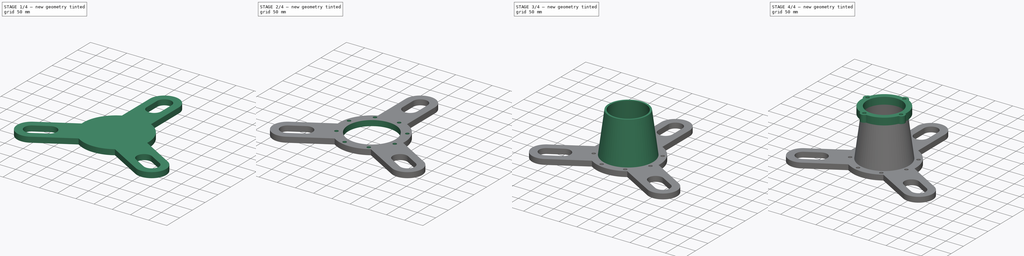
[diagram: build sequence overview — one tinted view per stage of 4, left to right]
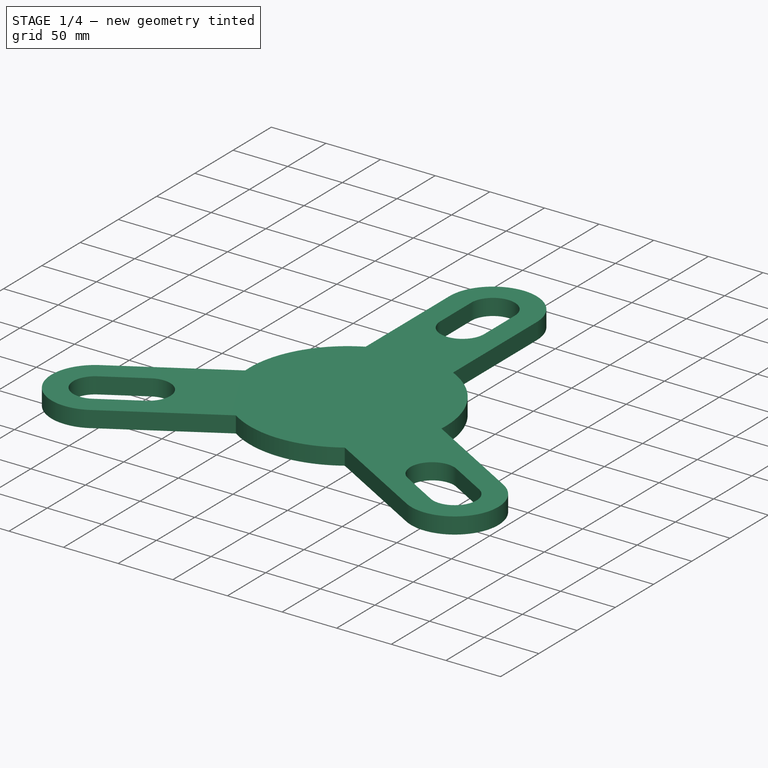
[diagram: stage 1 of 4 — iso view after this stage's code; geometry added in this stage tinted green]
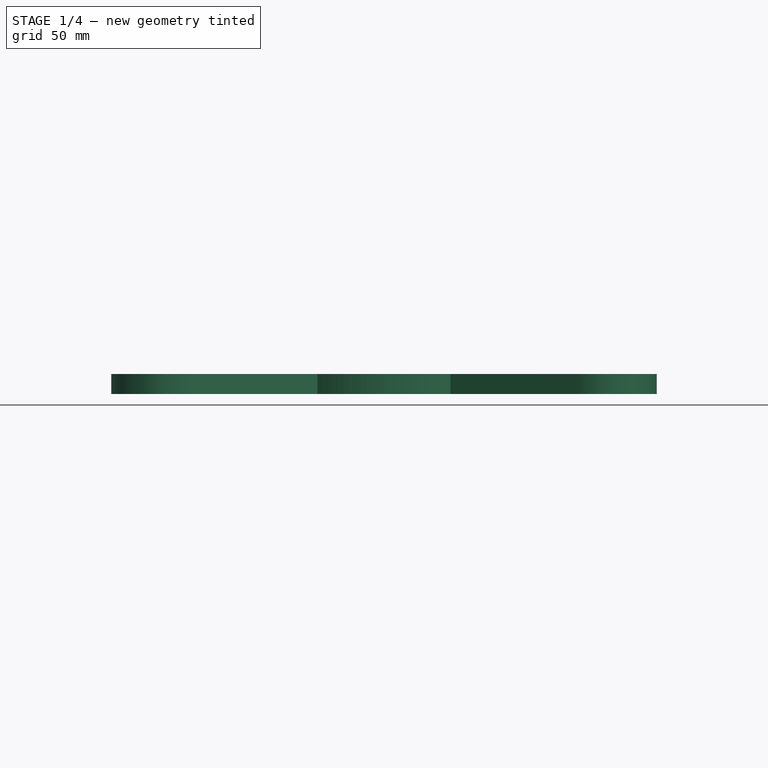
[diagram: stage 1 of 4 — front view after this stage's code; geometry added in this stage tinted green]
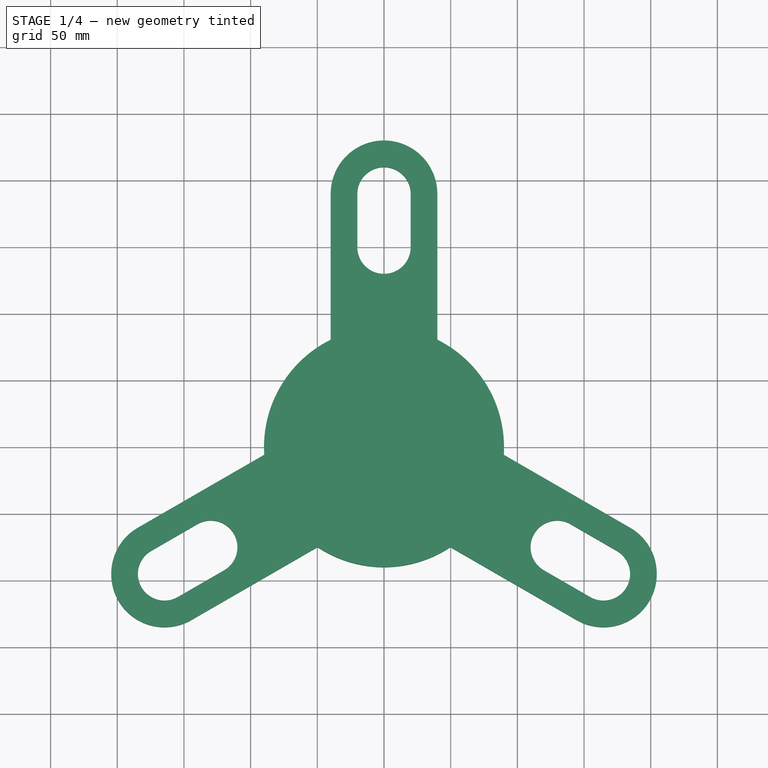
[diagram: stage 1 of 4 — top view after this stage's code; geometry added in this stage tinted green]
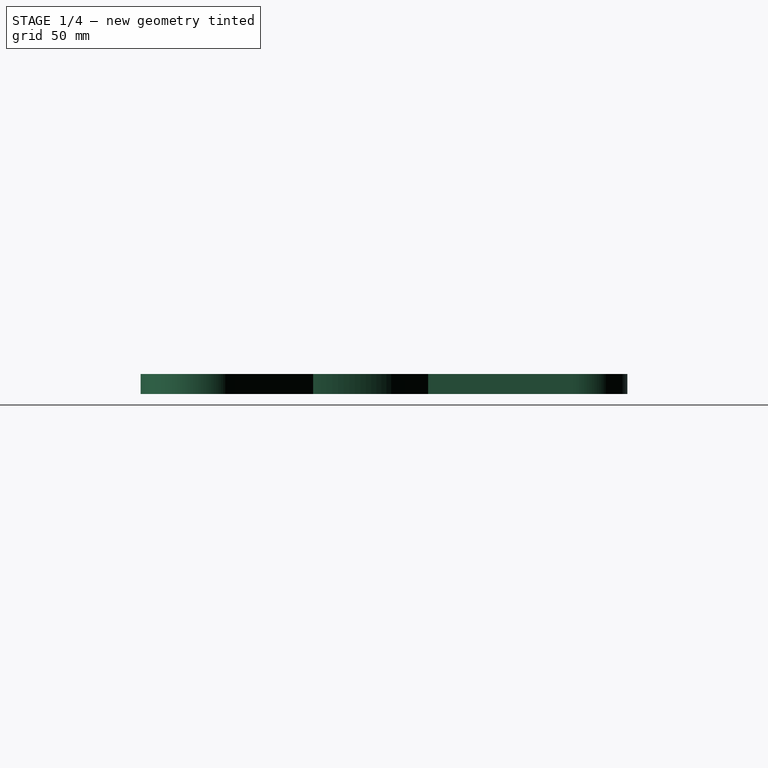
[diagram: stage 1 of 4 — right view after this stage's code; geometry added in this stage tinted green]
FCSTD DOCUMENT  (FreeCAD 0.16RUnknown)
Label: 35
License: All rights reserved
LicenseURL: http://en.wikipedia.org/wiki/All_rights_reserved
objects: Sketcher::SketchObject×12, PartDesign::Pad×4, PartDesign::Pocket×3, PartDesign::PolarPattern×2, Part::Loft×2, Part::Cut×1, Part::MultiFuse×1, Part::Feature×1
note: 33 computed .brp shape members not serialized (recipe doc carries the construction recipe); baked Part::Feature solids carry a one-line shape summary decoded from their .brp

FEATURE [Sketcher::SketchObject] Sketch
  sketch-geometry (1):
    g0: Circle CenterX=0 CenterY=0 CenterZ=0 NormalX=0 NormalY=0 NormalZ=1 Radius=90
  constraints (2):
    c: Coincident(g0,g-1)
    c: Radius(g0) = 90
FEATURE [PartDesign::Pad] Pad
  Length = 15
  Length2 = 100
  Sketch = -> Sketch
  Type = 0
FEATURE [Sketcher::SketchObject] Sketch001
  Placement = pos=(0,0,15) rot=(0,0,1;0rad)
  Support = -> Pad [Face3]
  sketch-geometry (9):
    g0: Circle [constr] CenterX=0 CenterY=0 CenterZ=0 NormalX=0 NormalY=0 NormalZ=1 Radius=150
    g1: ArcOfCircle CenterX=0 CenterY=190 CenterZ=0 NormalX=0 NormalY=0 NormalZ=1 Radius=20 StartAngle=0 EndAngle=3.14159
    g2: ArcOfCircle CenterX=0 CenterY=150 CenterZ=0 NormalX=0 NormalY=0 NormalZ=1 Radius=20 StartAngle=3.14159 EndAngle=6.28319
    g3: LineSegment StartX=-20 StartY=190 StartZ=0 EndX=-20 EndY=150 EndZ=0
    g4: LineSegment StartX=20 StartY=190 StartZ=0 EndX=20 EndY=150 EndZ=0
    g5: ArcOfCircle CenterX=0 CenterY=190 CenterZ=0 NormalX=0 NormalY=0 NormalZ=1 Radius=40 StartAngle=6.27593 EndAngle=9.4509
    g6: LineSegment StartX=-39.9864 StartY=188.955 StartZ=0 EndX=-39.9864 EndY=64.8353 EndZ=0
    g7: LineSegment StartX=-39.9864 StartY=64.8353 StartZ=0 EndX=39.9989 EndY=64.8353 EndZ=0
    g8: LineSegment StartX=39.9989 StartY=64.8353 StartZ=0 EndX=39.9989 EndY=189.71 EndZ=0
  constraints (21):
    c: Coincident(g0,g-1)
    c: Radius(g0) = 150
    c: Tangent(g1,g4) = 1.5708
    c: Tangent(g1,g3) = -1.5708
    c: Tangent(g3,g2) = -1.5708
    c: Tangent(g4,g2) = 1.5708
    c: Vertical(g3)
    c: Equal(g1,g2)
    c: PointOnObject(g2,g-2)
    c: PointOnObject(g2,g0)
    c: Radius(g1) = 20
    c: DistanceY(g2,g1) = 40
    c: Coincident(g5,g1)
    c: Radius(g5) = 40
    c: Coincident(g5,g6)
    c: Vertical(g6)
    c: Coincident(g6,g7)
    c: Horizontal(g7)
    c: Coincident(g7,g8)
    c: Coincident(g8,g5)
    c: Vertical(g8)
FEATURE [PartDesign::Pad] Pad001
  Length = 15
  Length2 = 100
  Reversed = true
  Sketch = -> Sketch001
  Type = 0
FEATURE [PartDesign::PolarPattern] PolarPattern
  Angle = 360
  Axis = -> Sketch001 [N_Axis]
  Occurrences = 3
  Originals = -> [Pad001]
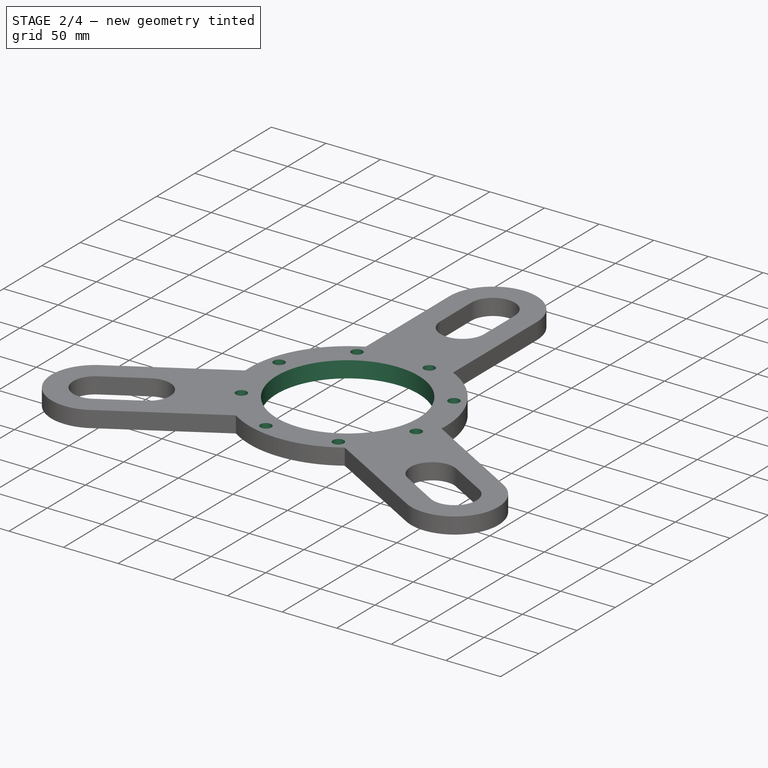
[diagram: stage 2 of 4 — iso view after this stage's code; geometry added in this stage tinted green]
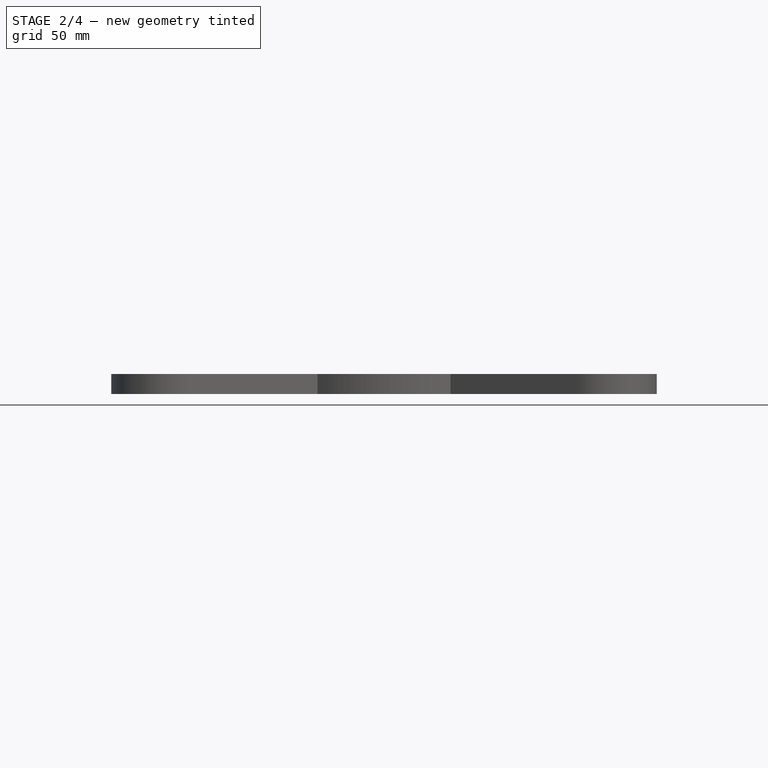
[diagram: stage 2 of 4 — front view after this stage's code; geometry added in this stage tinted green]
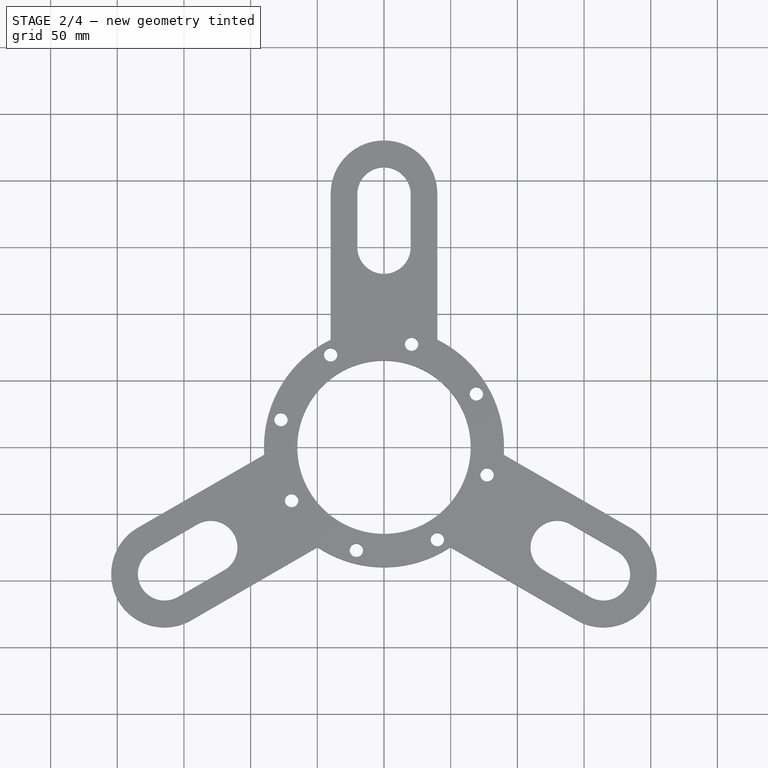
[diagram: stage 2 of 4 — top view after this stage's code; geometry added in this stage tinted green]
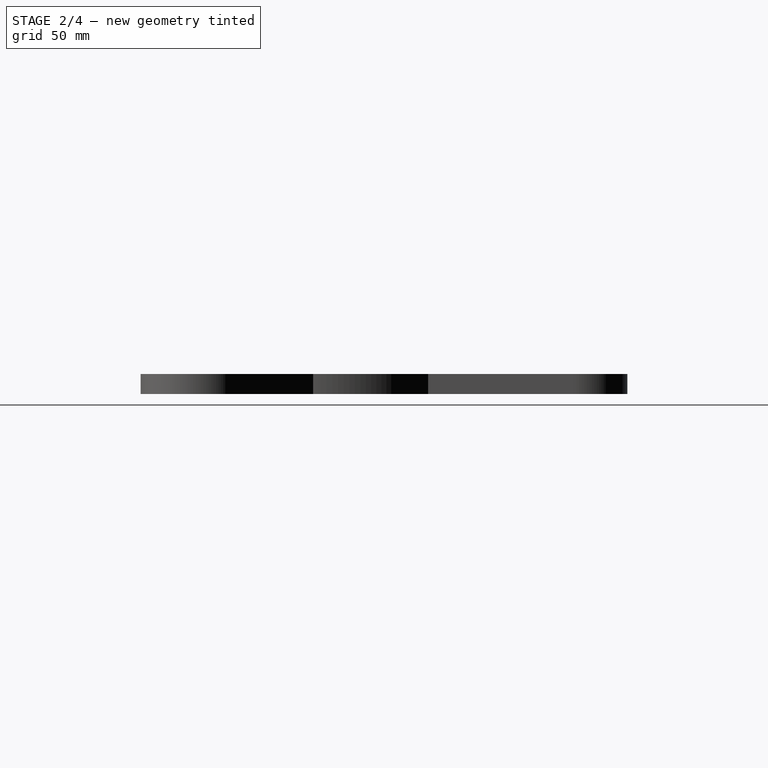
[diagram: stage 2 of 4 — right view after this stage's code; geometry added in this stage tinted green]
FEATURE [Sketcher::SketchObject] Sketch002
  ExternalGeometry = -> [PolarPattern]
  Placement = pos=(0,0,15) rot=(0,0,1;0rad)
  Support = -> PolarPattern [Face15]
  sketch-geometry (3):
    g0: Circle [constr] CenterX=0 CenterY=0 CenterZ=0 NormalX=0 NormalY=0 NormalZ=1 Radius=80
    g1: LineSegment [constr] StartX=0 StartY=0 StartZ=0 EndX=-163.869 EndY=-94.6098 EndZ=0
    g2: Circle CenterX=-69.282 CenterY=-40 CenterZ=0 NormalX=0 NormalY=0 NormalZ=1 Radius=5
  constraints (7):
    c: Coincident(g0,g-1)
    c: Radius(g0) = 80
    c: Coincident(g1,g-1)
    c: PointOnObject(g-3,g1)
    c: PointOnObject(g2,g1)
    c: PointOnObject(g2,g0)
    c: Radius(g2) = 5
FEATURE [PartDesign::Pocket] Pocket
  Length = 5
  Sketch = -> Sketch002
  Type = 1
FEATURE [PartDesign::PolarPattern] PolarPattern001
  Angle = 360
  Axis = -> Sketch002 [N_Axis]
  Occurrences = 8
  Originals = -> [Pocket]
FEATURE [Sketcher::SketchObject] Sketch004
  Placement = pos=(0,0,15) rot=(0,0,1;0rad)
  Support = -> PolarPattern001 [Face15]
  sketch-geometry (1):
    g0: Circle CenterX=0 CenterY=0 CenterZ=0 NormalX=0 NormalY=0 NormalZ=1 Radius=65
  constraints (2):
    c: Coincident(g0,g-1)
    c: Radius(g0) = 65
FEATURE [PartDesign::Pocket] Pocket001
  Length = 5
  Sketch = -> Sketch004
  Type = 1
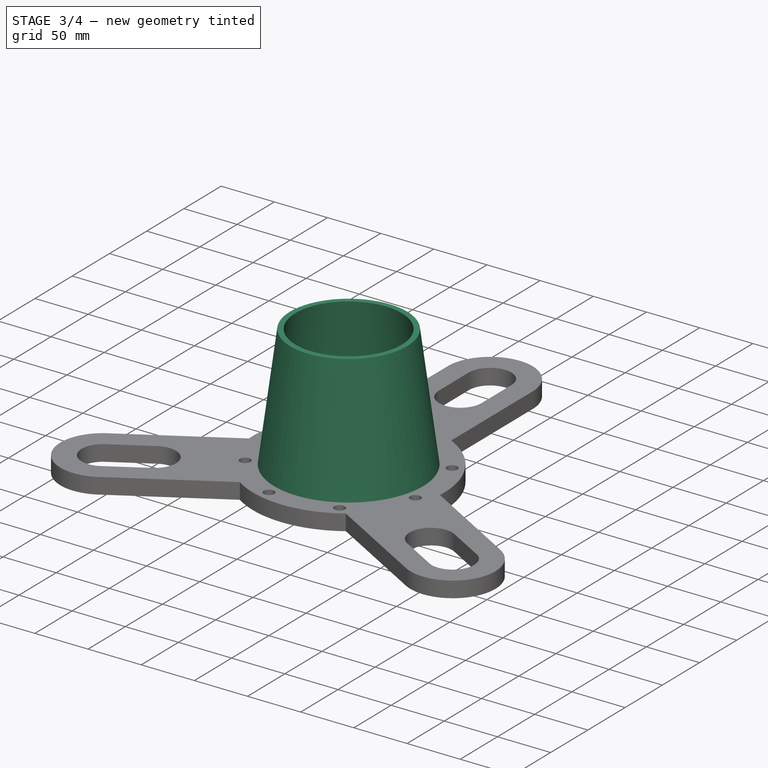
[diagram: stage 3 of 4 — iso view after this stage's code; geometry added in this stage tinted green]
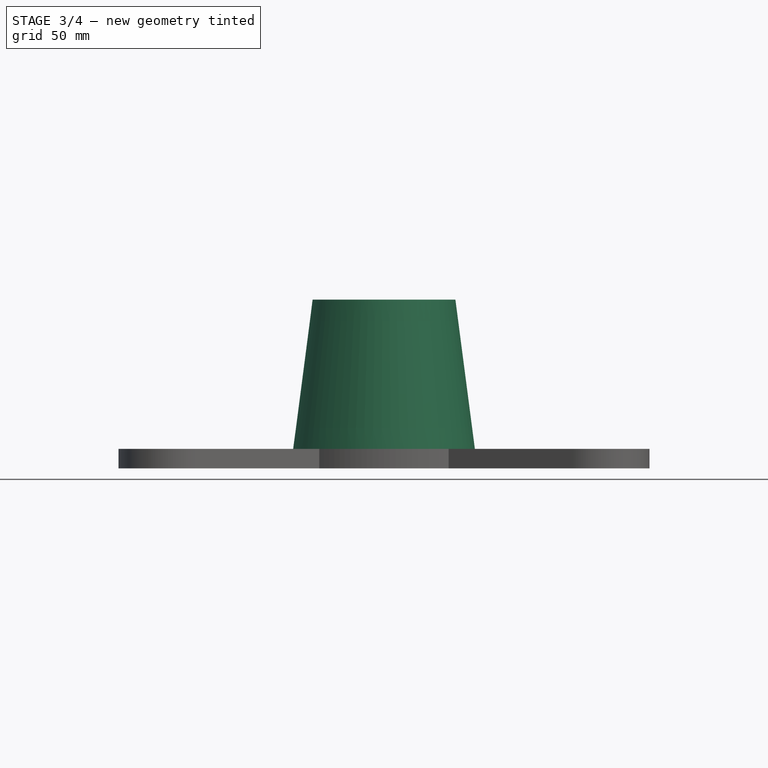
[diagram: stage 3 of 4 — front view after this stage's code; geometry added in this stage tinted green]
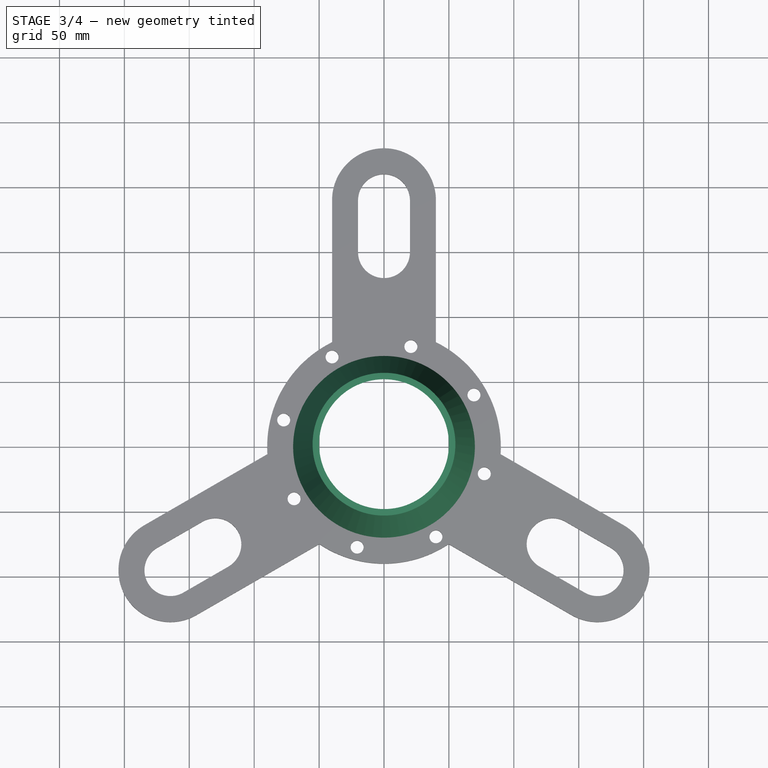
[diagram: stage 3 of 4 — top view after this stage's code; geometry added in this stage tinted green]
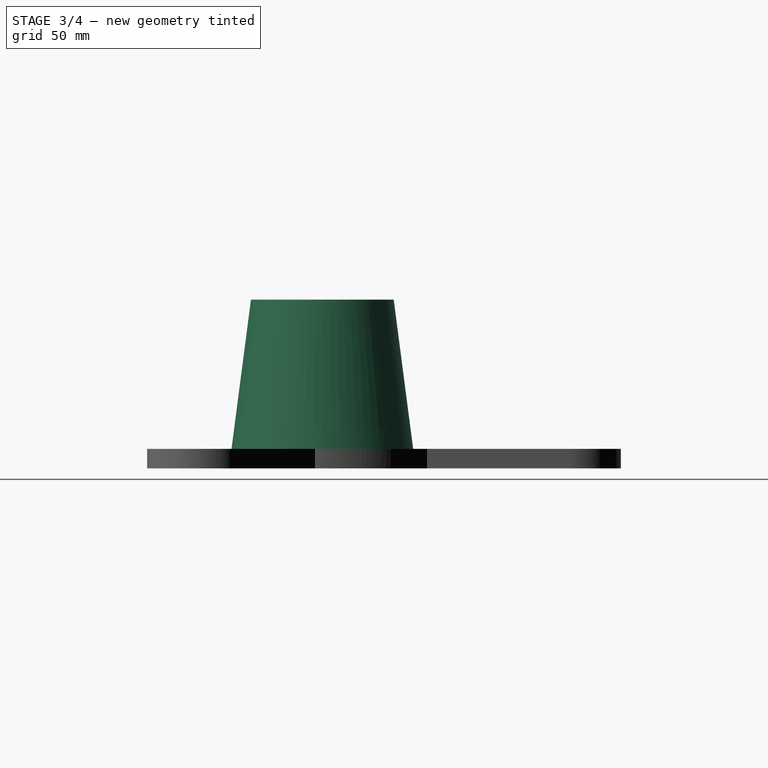
[diagram: stage 3 of 4 — right view after this stage's code; geometry added in this stage tinted green]
FEATURE [Sketcher::SketchObject] Sketch005
  ExternalGeometry = -> [Pocket001]
  Placement = pos=(0,0,15) rot=(0,0,1;0rad)
  Support = -> Pocket001 [Face18]
  sketch-geometry (1):
    g0: Circle CenterX=0 CenterY=0 CenterZ=0 NormalX=0 NormalY=0 NormalZ=1 Radius=70
  constraints (2):
    c: Coincident(g0,g-1)
    c: Radius(g0) = 70
FEATURE [Sketcher::SketchObject] Sketch006
  Placement = pos=(0,0,130) rot=(0,0,1;0rad)
  sketch-geometry (1):
    g0: Circle CenterX=0 CenterY=0 CenterZ=0 NormalX=0 NormalY=0 NormalZ=1 Radius=55
  constraints (2):
    c: Coincident(g0,g-1)
    c: Radius(g0) = 55
FEATURE [Part::Loft] Loft
  Closed = false
  Ruled = false
  Sections = -> [Sketch006,Sketch005]
  Solid = true
FEATURE [Sketcher::SketchObject] Sketch007
  Placement = pos=(0,0,15) rot=(1,0,0;3.14159rad)
  Support = -> Loft [Face3]
  sketch-geometry (1):
    g0: Circle CenterX=0.558429 CenterY=0 CenterZ=0 NormalX=0 NormalY=0 NormalZ=1 Radius=65
  constraints (2):
    c: PointOnObject(g0,g-1)
    c: Radius(g0) = 65
FEATURE [Sketcher::SketchObject] Sketch008
  Placement = pos=(0,0,130) rot=(0,0,1;0rad)
  Support = -> Loft [Face2]
  sketch-geometry (1):
    g0: Circle CenterX=0 CenterY=0 CenterZ=0 NormalX=0 NormalY=0 NormalZ=1 Radius=50
  constraints (2):
    c: Coincident(g0,g-1)
    c: Radius(g0) = 50
FEATURE [Part::Loft] Loft001
  Closed = false
  Ruled = false
  Sections = -> [Sketch008,Sketch007]
  Solid = true
FEATURE [Part::Cut] Cut
  Base = -> Loft
  Tool = -> Loft001
FEATURE [Part::MultiFuse] Fusion
  Shapes = -> [Pocket001,Cut]
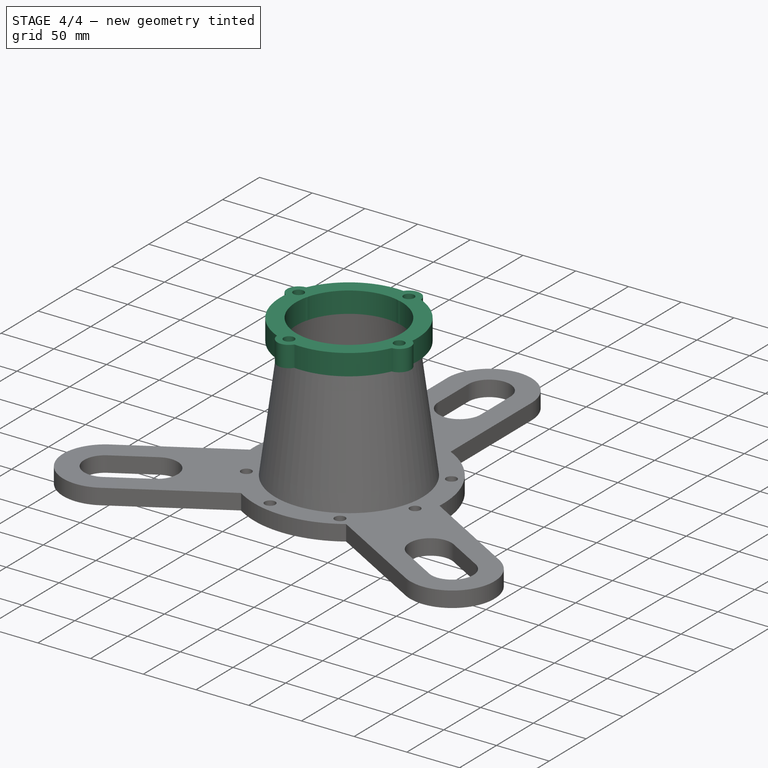
[diagram: stage 4 of 4 — iso view after this stage's code; geometry added in this stage tinted green]
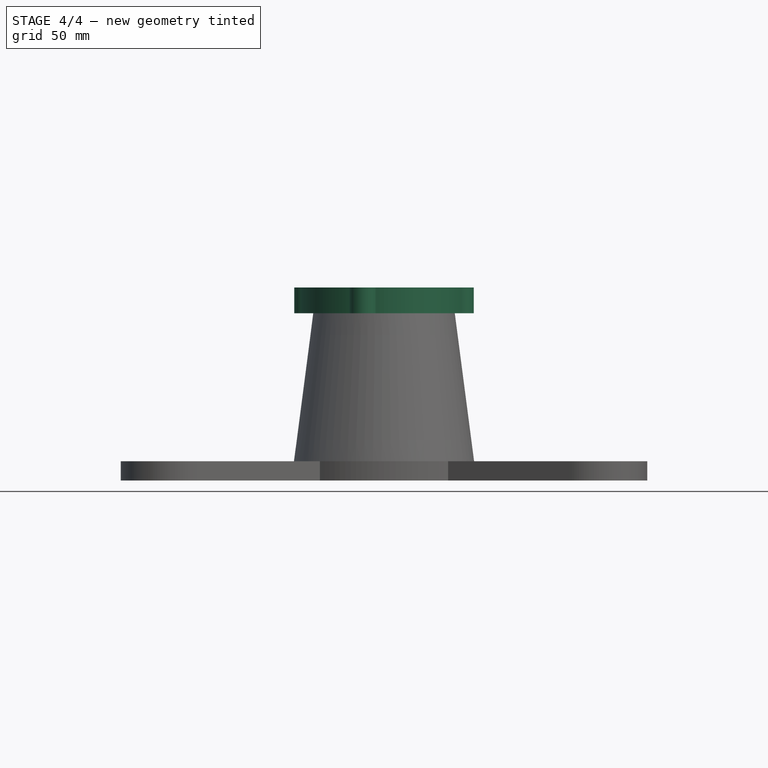
[diagram: stage 4 of 4 — front view after this stage's code; geometry added in this stage tinted green]
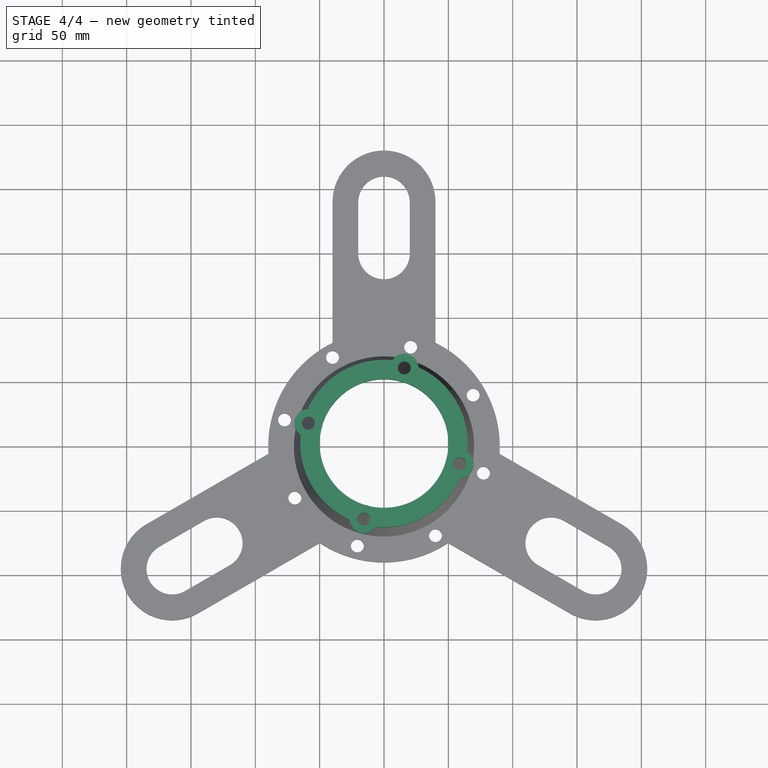
[diagram: stage 4 of 4 — top view after this stage's code; geometry added in this stage tinted green]
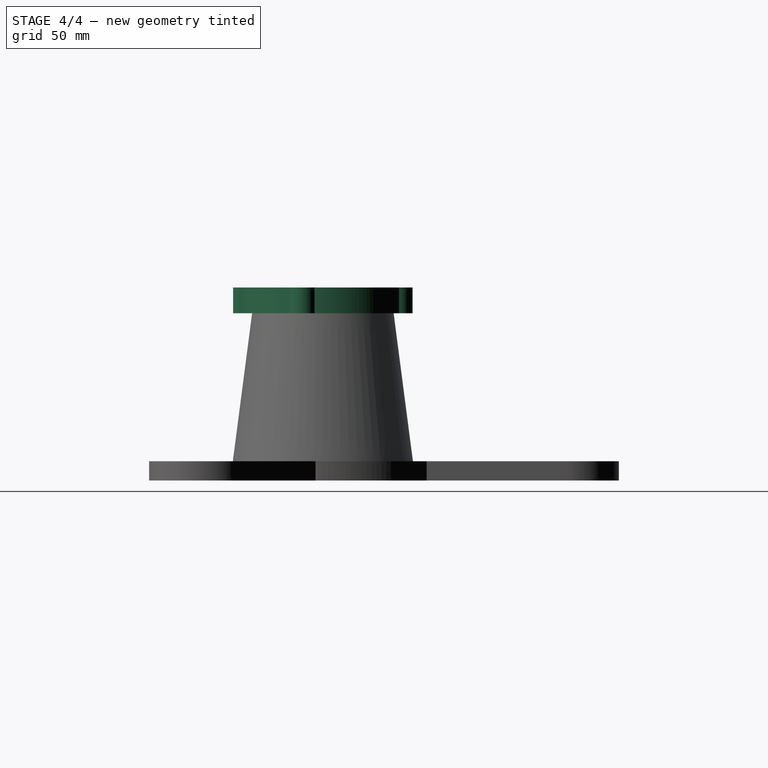
[diagram: stage 4 of 4 — right view after this stage's code; geometry added in this stage tinted green]
FEATURE [Sketcher::SketchObject] Sketch009
  ExternalGeometry = -> [Fusion]
  Placement = pos=(0,0,130) rot=(0,0,1;0rad)
  Support = -> Fusion [Face35]
  sketch-geometry (2):
    g0: Circle CenterX=0 CenterY=0 CenterZ=0 NormalX=0 NormalY=0 NormalZ=1 Radius=50
    g1: Circle CenterX=0 CenterY=0 CenterZ=0 NormalX=0 NormalY=0 NormalZ=1 Radius=65
  constraints (4):
    c: Coincident(g0,g-1)
    c: Coincident(g1,g-1)
    c: Equal(g0,g-3)
    c: Radius(g1) = 65
FEATURE [PartDesign::Pad] Pad002
  Length = 20
  Length2 = 100
  Sketch = -> Sketch009
  Type = 0
FEATURE [Sketcher::SketchObject] Sketch010
  ExternalGeometry = -> [Pad002]
  Placement = pos=(0,0,150) rot=(0,0,1;0rad)
  Support = -> Pad002 [Face3]
  sketch-geometry (6):
    g0: Circle [constr] CenterX=0 CenterY=0 CenterZ=0 NormalX=0 NormalY=0 NormalZ=1 Radius=60.8112
    g1: LineSegment [constr] StartX=-95.0811 StartY=-54.8951 StartZ=0 EndX=106.567 EndY=61.5263 EndZ=0
    g2: Circle CenterX=15.7391 CenterY=58.7391 CenterZ=0 NormalX=0 NormalY=0 NormalZ=1 Radius=8.07502
    g3: Circle CenterX=58.7391 CenterY=-15.7391 CenterZ=0 NormalX=0 NormalY=0 NormalZ=1 Radius=6.73375
    g4: Circle CenterX=-58.7391 CenterY=15.7391 CenterZ=0 NormalX=0 NormalY=0 NormalZ=1 Radius=15.7391
    g5: Circle CenterX=-15.7391 CenterY=-58.7391 CenterZ=0 NormalX=0 NormalY=0 NormalZ=1 Radius=6.82254
  constraints (13):
    c: Coincident(g0,g-1)
    c: PointOnObject(g-3,g1)
    c: PointOnObject(g-1,g1)
    c: PointOnObject(g2,g0)
    c: PointOnObject(g3,g0)
    c: Symmetric(g3,g2,g1)
    c: Distance(g3,g2) = 86
    c: PointOnObject(g4,g0)
    c: Tangent(g4,g-1)
    c: PointOnObject(g5,g0)
    c: Symmetric(g5,g4,g1)
    c: Distance(g5,g4) = 86
    c: Distance(g4,g2) = 86
FEATURE [Sketcher::SketchObject] Sketch011
  ExternalGeometry = -> [Pad002]
  Placement = pos=(0,0,150) rot=(0,0,1;0rad)
  Support = -> Pad002 [Face3]
  sketch-geometry (10):
    g0: LineSegment [constr] StartX=-151.041 StartY=-87.2037 StartZ=0 EndX=126.044 EndY=72.7716 EndZ=0
    g1: Circle CenterX=15.7391 CenterY=58.7391 CenterZ=0 NormalX=0 NormalY=0 NormalZ=1 Radius=5
    g2: Circle CenterX=58.7391 CenterY=-15.7391 CenterZ=0 NormalX=0 NormalY=0 NormalZ=1 Radius=5
    g3: Circle CenterX=-15.7391 CenterY=-58.7391 CenterZ=0 NormalX=0 NormalY=0 NormalZ=1 Radius=5
    g4: Circle CenterX=-58.7391 CenterY=15.7391 CenterZ=0 NormalX=0 NormalY=0 NormalZ=1 Radius=5
    g5: Circle [constr] CenterX=0 CenterY=0 CenterZ=0 NormalX=0 NormalY=0 NormalZ=1 Radius=60.8112
    g6: Circle CenterX=-58.7391 CenterY=15.7391 CenterZ=0 NormalX=0 NormalY=0 NormalZ=1 Radius=11
    g7: Circle CenterX=-15.7391 CenterY=-58.7391 CenterZ=0 NormalX=0 NormalY=0 NormalZ=1 Radius=11
    g8: Circle CenterX=58.7391 CenterY=-15.7391 CenterZ=0 NormalX=0 NormalY=0 NormalZ=1 Radius=11
    g9: Circle CenterX=15.7391 CenterY=58.7391 CenterZ=0 NormalX=0 NormalY=0 NormalZ=1 Radius=11
  constraints (22):
    c: PointOnObject(g-1,g0)
    c: PointOnObject(g-3,g0)
    c: Equal(g4,g3)
    c: Equal(g3,g1)
    c: Equal(g1,g2)
    c: Radius(g1) = 5
    c: Symmetric(g1,g2,g0)
    c: Symmetric(g3,g4,g0)
    c: Distance(g3,g4) = 86
    c: Distance(g1,g2) = 86
    c: Distance(g1,g4) = 86
    c: Coincident(g5,g-1)
    c: PointOnObject(g3,g5)
    c: PointOnObject(g1,g5)
    c: Coincident(g6,g4)
    c: Radius(g6) = 11
    c: Coincident(g7,g3)
    c: Coincident(g8,g2)
    c: Coincident(g9,g1)
    c: Equal(g9,g8)
    c: Equal(g8,g7)
    c: Equal(g7,g6)
FEATURE [PartDesign::Pad] Pad003
  Length = 20
  Length2 = 100
  Reversed = true
  Sketch = -> Sketch011
  Type = 0
FEATURE [Sketcher::SketchObject] Sketch012
  ExternalGeometry = -> [Pad003]
  Placement = pos=(0,0,150) rot=(0,0,1;0rad)
  Support = -> Pad003 [Face90]
  sketch-geometry (4):
    g0: Circle CenterX=-58.7391 CenterY=15.7391 CenterZ=0 NormalX=0 NormalY=0 NormalZ=1 Radius=5
    g1: Circle CenterX=-15.7391 CenterY=-58.7391 CenterZ=0 NormalX=0 NormalY=0 NormalZ=1 Radius=5
    g2: Circle CenterX=58.7391 CenterY=-15.7391 CenterZ=0 NormalX=0 NormalY=0 NormalZ=1 Radius=5
    g3: Circle CenterX=15.7391 CenterY=58.7391 CenterZ=0 NormalX=0 NormalY=0 NormalZ=1 Radius=5
  constraints (8):
    c: Coincident(g0,g-5)
    c: Coincident(g1,g-4)
    c: Coincident(g2,g-3)
    c: Coincident(g3,g-6)
    c: Equal(g-6,g3)
    c: Equal(g0,g-5)
    c: Equal(g-4,g1)
    c: Equal(g2,g-3)
FEATURE [PartDesign::Pocket] Pocket002
  Length = 20
  Sketch = -> Sketch012
  Type = 0
FEATURE [Part::Feature] Pocket002001  label="Pocket003"
  shape: bbox 409.1 x 365 x 150 mm, 65 faces (baked)
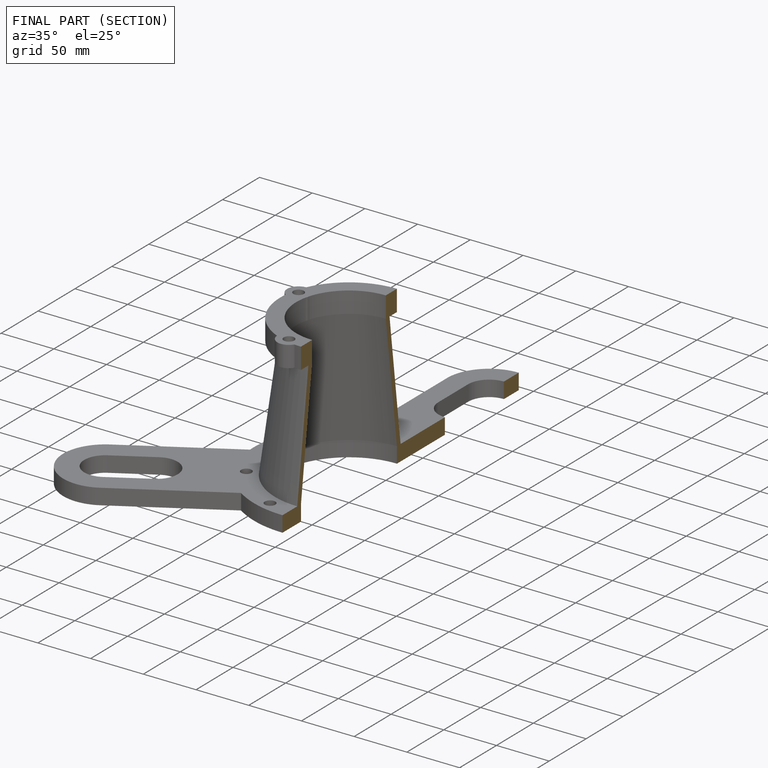
[diagram: finished part — half-section view (interior)]
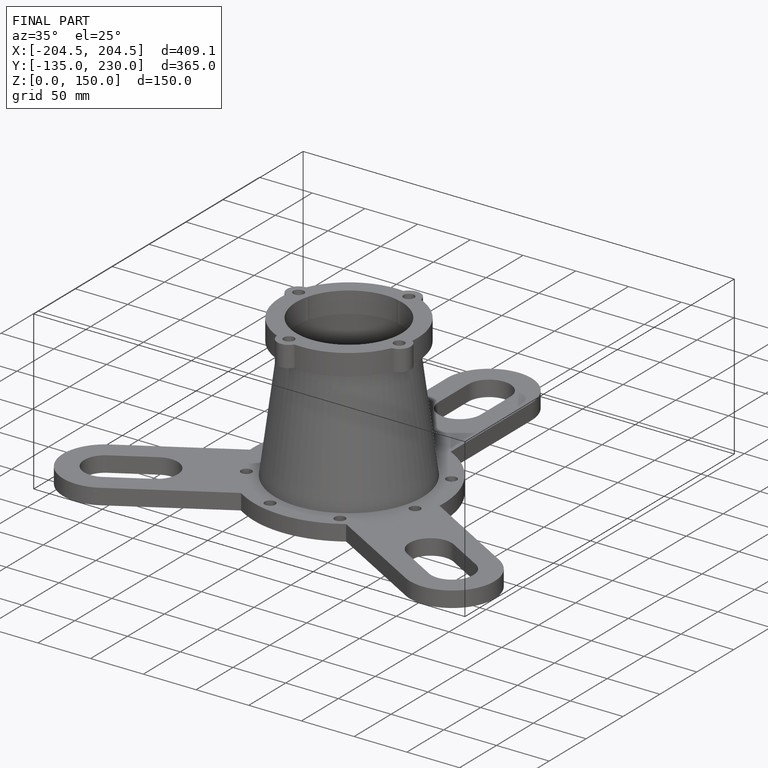
[diagram: finished part — iso view with bounding-box wireframe]
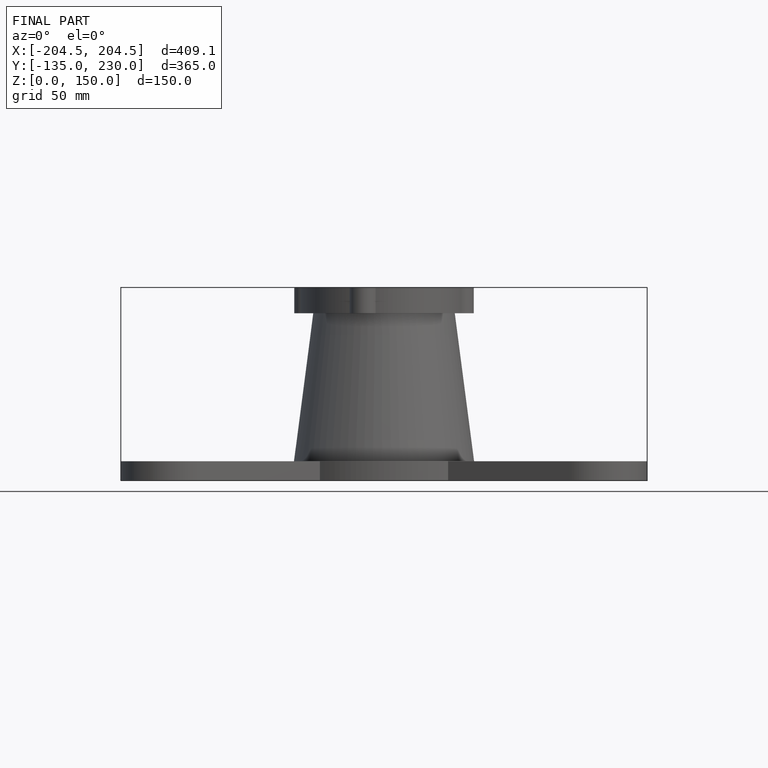
[diagram: finished part — front view with bounding-box wireframe]
